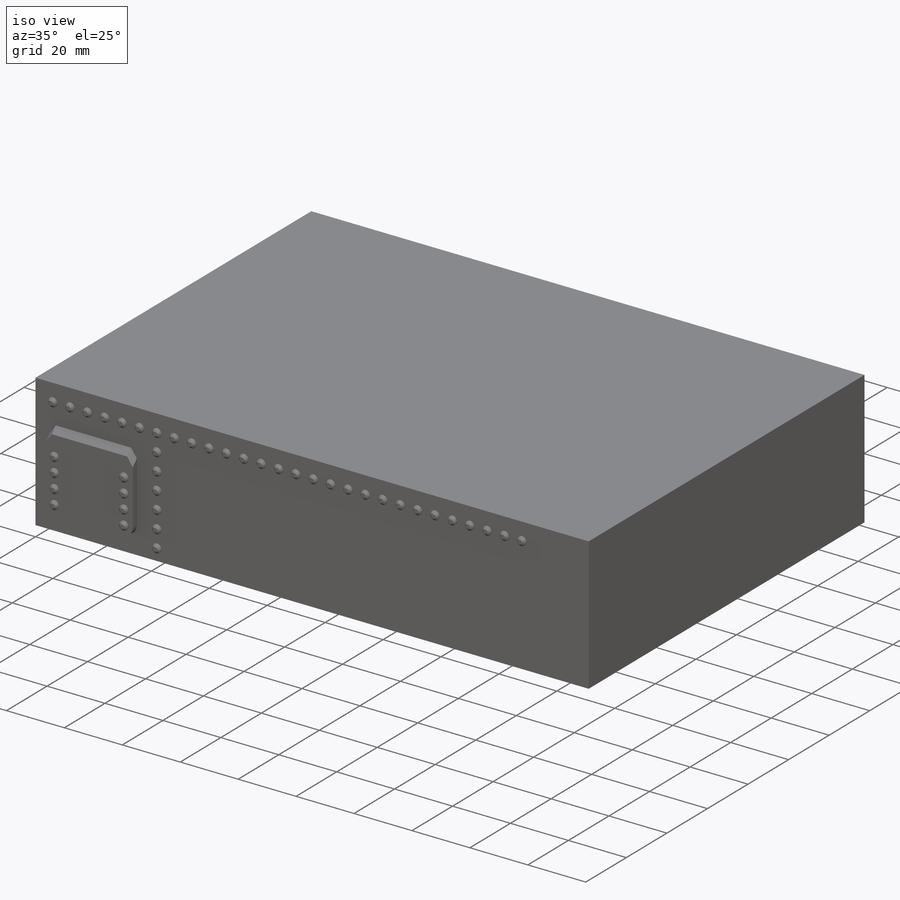
[diagram: iso view]
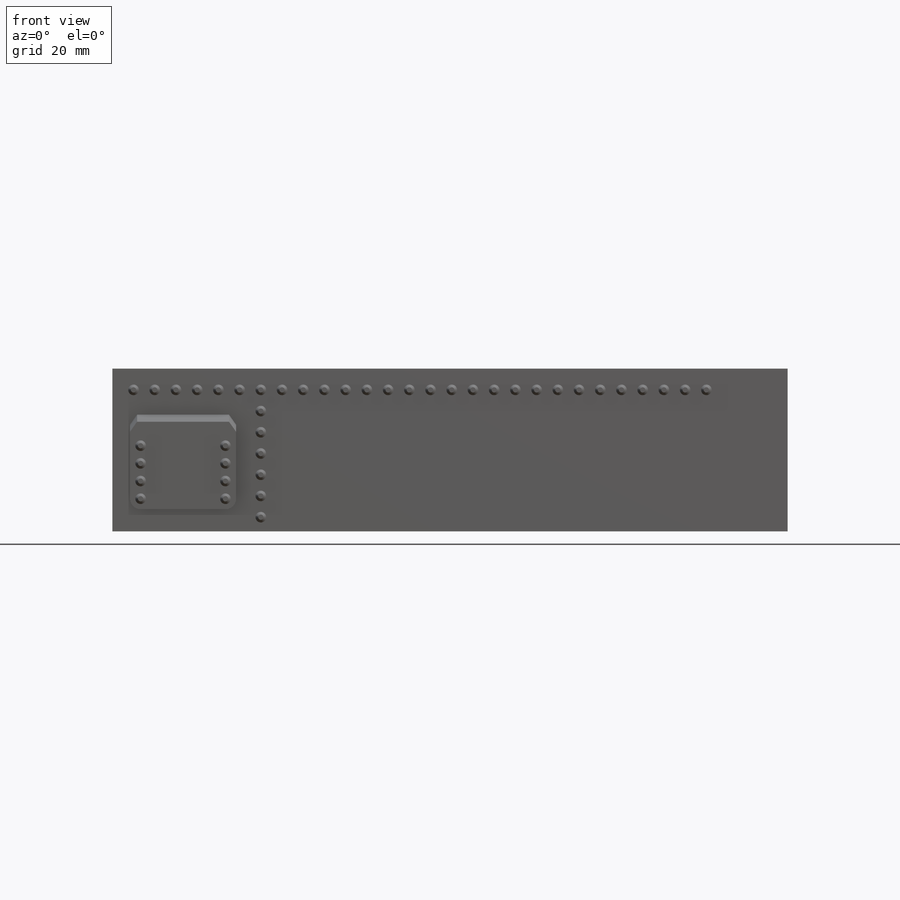
[diagram: front view]
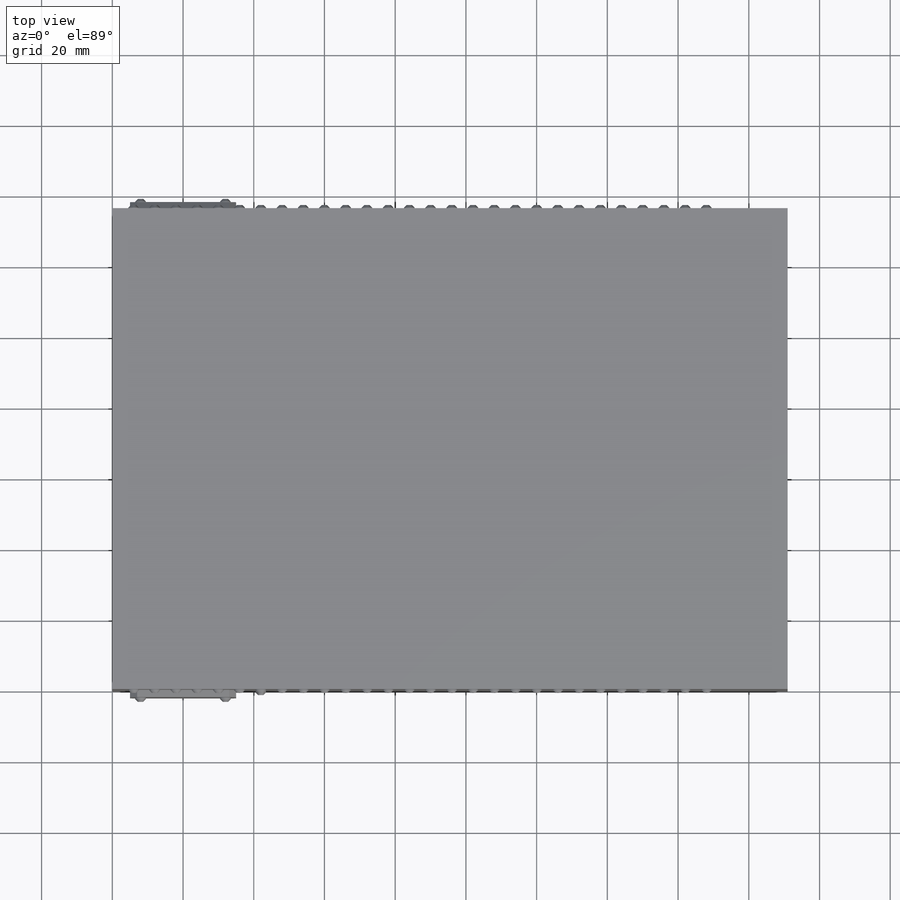
[diagram: top view]
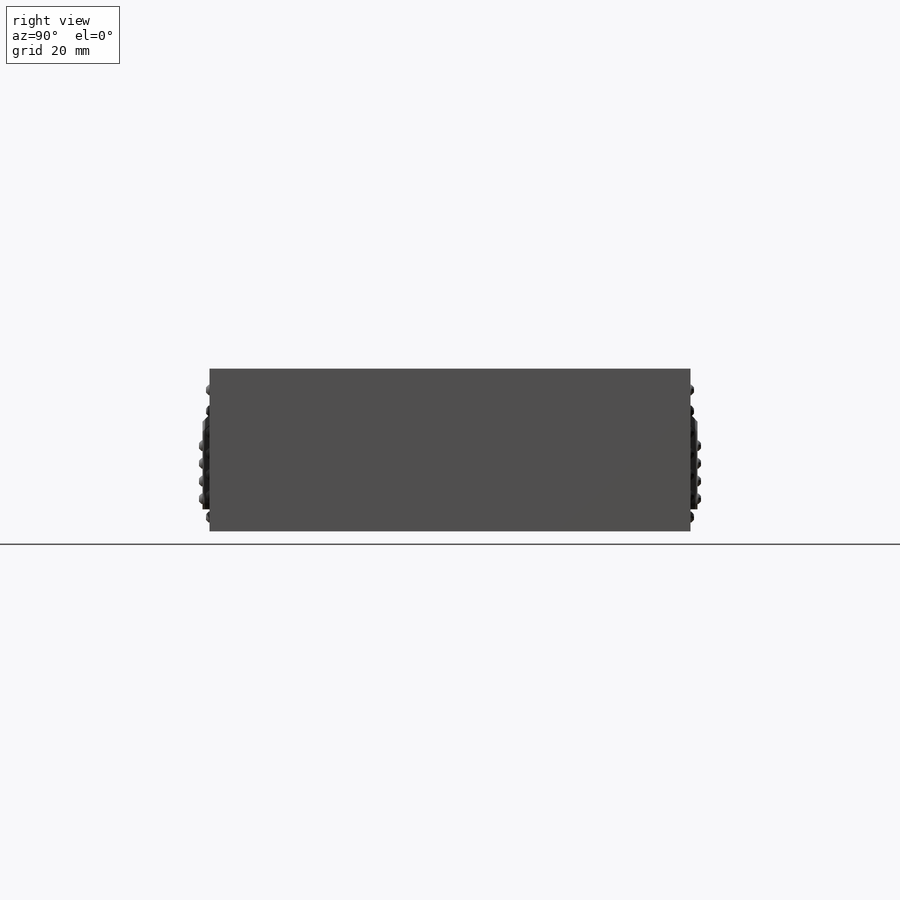
[diagram: right view]
SOLIDWORKS PART (.sldprt)
format: sldprt  version: not decoded by parser v0  size: 1,014,784 bytes
history: native  units: mm
features: sketch x29, cut_extrude x13, extrude x11, chamfer x9, fillet x3, plane x2, mirror x2, material x1, pattern_circular x1, hole x1 (+13 scaffold rows collapsed)
feature tree (85):
  scaffold x13  (default folders/planes/origin — collapsed)
  material  "Material <not specified>"
  sketch  "Sketch1"  dims[D1=191.0mm D2=136.0mm]
  extrude  "Boss-Extrude1"  Depth=46mm
  sketch  "Sketch3"  dims[D1=5.0mm D2=5.0mm D3=5.0mm D4=5.0mm]
  cut_extrude  "Cut-Extrude1"  Depth=5mm
  sketch  "Sketch5"  dims[D1=71.5mm]
  sketch  "Sketch8"
  extrude  "SuspensionMountLeft"  [1 undecoded]
  extrude  "SuspensionMountRight"  [1 undecoded]
  sketch  "Sketch9"  dims[D1=5.0mm D2=15.0mm D3=30.0mm]
  extrude  "Boss-Extrude2"  Depth=2mm
  chamfer  "Chamfer2"  Distance=2mm Angle=45deg
  fillet  "Fillet1"  Radius=3mm
  chamfer  "Chamfer3"  Distance=2mm Angle=45deg
  sketch  "Sketch10"  dims[D1=0.0mm]
  extrude  "Boss-Extrude3"  Depth=2mm
  chamfer  "Chamfer4"  Distance=2mm Angle=45deg
  fillet  "Fillet2"  Radius=3mm
  chamfer  "Chamfer5"  Distance=2mm Angle=45deg
  sketch  "Sketch23"  dims[D1=3.0mm D2=3.0mm D3=4.0]
  extrude  "Boss-Extrude8"  Depth=1mm
  chamfer  "Chamfer11"  Distance=0.75mm Angle=45deg
  plane  "Plane1"
  mirror  "Mirror1"
  sketch  "Sketch18"  dims[c1.D1=0.0mm c1.D2=0.0mm c1.D3=0.0mm c1.D4=0.0mm c2.D1=0.0mm c2.D2=0.0mm c2.D3=0.0mm c2.D4=0.0mm]
  extrude  "Boss-Extrude7"  Depth=14mm
  sketch  "Sketch22"  dims[D1=10.0mm D2=10.0mm D3=8.0mm D4=70.0mm]
  cut_extrude  "Cut-Extrude2"  [1 undecoded]
  chamfer  "Chamfer10"  Distance=28mm Angle=45deg
  fillet  "Fillet3"  Radius=3mm
  sketch  "Sketch24"  dims[D2=3.0mm D1=6.0mm D3=6.0mm D4=28.0 D5=7.0]
  extrude  "Boss-Extrude9"  Depth=1mm
  chamfer  "Chamfer12"  Distance=0.75mm Angle=45deg
  mirror  "Mirror3"
  sketch  "Sketch25"
  cut_extrude  "Cut-Extrude3"  [1 undecoded]
  sketch  "Sketch26"  dims[D1=0.0mm D2=0.0mm]
  cut_extrude  "Cut-Extrude4"  [1 undecoded]
  sketch  "Sketch27"  dims[D1=2.0mm D2=28.0mm D3=28.0mm]
  sketch  "Sketch28"  dims[D1=0.0mm D2=0.0mm D3=0.0mm]
  cut_extrude  "Cut-Extrude5"  [1 undecoded]
  cut_extrude  "Cut-Extrude6"  [1 undecoded]
  sketch  "Sketch28<3>"
  extrude  "Boss-Extrude10"  [1 undecoded]
  sketch  "Sketch28<4>"  dims[D1=40.0mm]
  sketch  "Sketch29"  dims[c1.D2=~3.107309mm c1.D1=1.0mm c2.D2=1.0mm c2.D3=30.0mm c2.D4=30.0mm]
  cut_extrude  "Cut-Extrude7"  Depth=20mm
  plane  "Plane2"  Offset=0mm
  sketch  "Sketch30"  dims[D2=1.0mm D3=1.0mm D4=0.1mm D5=0.1mm D6=6.1mm D1=0.0mm]
  extrude  "Boss-Extrude11"  Depth=3mm
  pattern_circular  "CirPattern1"  Count=6 Angle=360deg
  chamfer  "Chamfer13"  Distance=0.5mm Angle=45deg
  sketch  "Sketch31"
  cut_extrude  "Cut-Extrude8"  [1 undecoded]
  sketch  "Sketch32"
  cut_extrude  "Cut-Extrude9"  [1 undecoded]
  sketch  "Sketch35"
  cut_extrude  "Cut-Extrude11"  [1 undecoded]
  sketch  "Sketch36"  dims[D1=106.0mm]
  sketch  "Sketch37"  dims[D2=6.0mm D1=0.0mm]
  extrude  "Boss-Extrude12"  Depth=12mm
  chamfer  "Chamfer14"  Distance=2.999mm Angle=45deg
  sketch  "Sketch38"  dims[D1=3.1mm D2=3.1mm D3=3.1mm D4=3.1mm]
  cut_extrude  "Cut-Extrude12"  Depth=2mm
  sketch  "Sketch39"
  hole  "Ø2.0mm Dowel Hole1"  Diameter=2mm Depth=12mm
  sketch  "Sketch41"
  sketch  "Sketch42"  dims[hole-wizard template sketch: 47 standard entries collapsed; hole parameters kept: c15.Hole Depth=12.0mm c15.D3=~14.816244mm c15.Drill Angle=118.0deg]
  sketch  "Sketch43"  dims[D1=0.0mm D2=0.0mm D3=0.0mm D4=0.0mm]
  cut_extrude  "Cut-Extrude13"  [1 undecoded]
  sketch  "Sketch44"  dims[D1=0.0mm D2=0.0mm D3=0.0mm D4=0.0mm]
  cut_extrude  "Cut-Extrude14"  [1 undecoded]
decode coverage: 46 of 69 modeling features carry decoded parameters
note: ~ marks probable driven/reference dimensions
note: 13 parameter values undecoded
summary: no parameter record found for 13 features
note: suppression state not decoded; provenance and decode notes live in map.json
